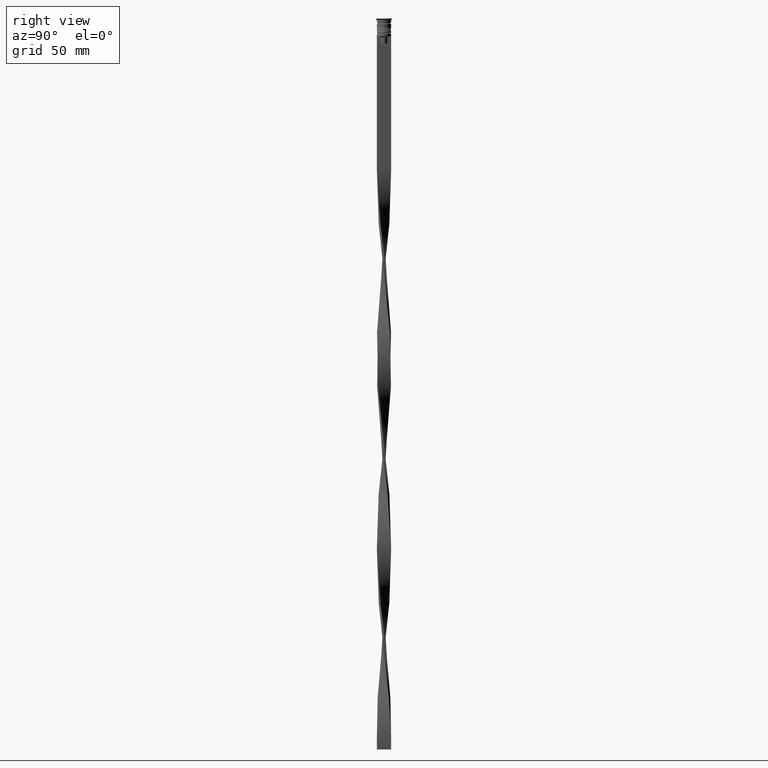
[diagram: clean part render]
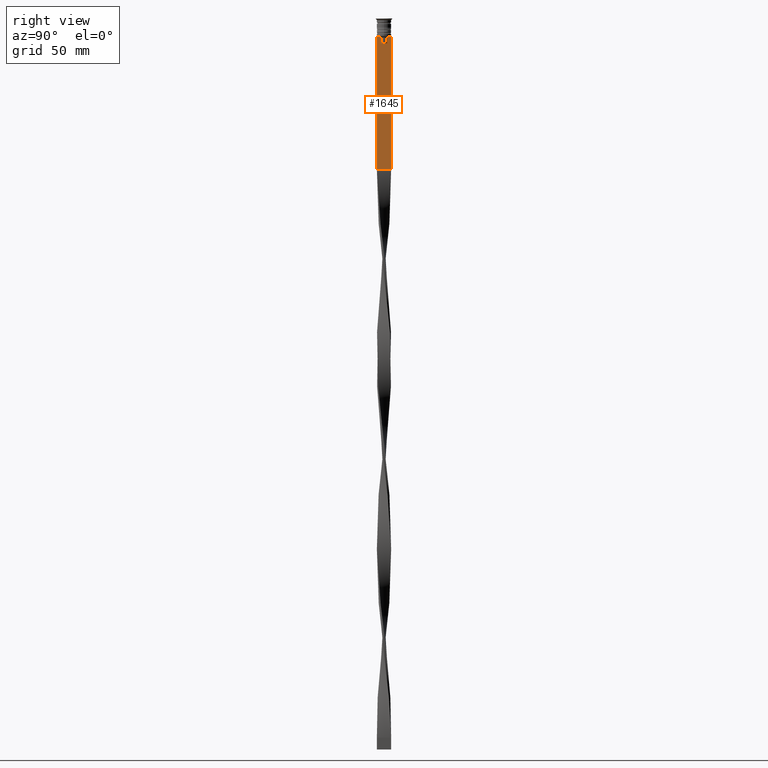
[diagram: same view with one face highlighted and labeled with its STEP entity id]
A machine part, right view. The second image highlights one B-rep face of the part: STEP entity #1645.
In plain terms, the highlighted planar face has unit normal (-1, 0, 0).
Its self-contained STEP definition (entity closure, byte-faithful):
#23 = ORIENTED_EDGE ( 'NONE', *, *, #3742, .T. ) ;
#37 = B_SPLINE_CURVE_WITH_KNOTS ( 'NONE', 3,
 ( #3471, #97, #3786, #3491 ),
 .UNSPECIFIED., .F., .F.,
 ( 4, 4 ),
 ( 0.003278537493109848298, 0.004003794023484941178 ),
 .UNSPECIFIED. ) ;
#84 = DIRECTION ( 'NONE',  ( 0.000000000000000000, 0.000000000000000000, -1.000000000000000000 ) ) ;
#86 = DIRECTION ( 'NONE',  ( 0.000000000000000000, -1.000000000000000000, 0.000000000000000000 ) ) ;
#97 = CARTESIAN_POINT ( 'NONE',  ( 0.4999999999999998890, 1.659046061654642967, -7.667851756010362507 ) ) ;
#124 = CARTESIAN_POINT ( 'NONE',  ( 0.4999999999999998890, -3.000000000000000000, -7.500000000000000000 ) ) ;
#176 = CARTESIAN_POINT ( 'NONE',  ( 0.4999999999999998890, 1.307669683062199439, -8.000000000000000000 ) ) ;
#178 = LINE ( 'NONE', #2660, #1796 ) ;
#284 = VERTEX_POINT ( 'NONE', #2982 ) ;
#441 = PLANE ( 'NONE',  #2488 ) ;
#455 = DIRECTION ( 'NONE',  ( 0.000000000000000000, -1.000000000000000000, 0.000000000000000000 ) ) ;
#457 = VECTOR ( 'NONE', #86, 1000.000000000000000 ) ;
#594 = EDGE_CURVE ( 'NONE', #1530, #2622, #1378, .T. ) ;
#948 = ORIENTED_EDGE ( 'NONE', *, *, #1195, .T. ) ;
#1001 = ORIENTED_EDGE ( 'NONE', *, *, #3054, .T. ) ;
#1050 = CARTESIAN_POINT ( 'NONE',  ( 0.4999999999999998890, -3.000000000000000000, -7.500000000000000000 ) ) ;
#1098 = VECTOR ( 'NONE', #2464, 1000.000000000000000 ) ;
#1101 = VECTOR ( 'NONE', #2796, 1000.000000000000000 ) ;
#1116 = VERTEX_POINT ( 'NONE', #3928 ) ;
#1152 = VERTEX_POINT ( 'NONE', #1467 ) ;
#1181 = DIRECTION ( 'NONE',  ( 0.000000000000000000, -1.000000000000000000, 0.000000000000000000 ) ) ;
#1195 = EDGE_CURVE ( 'NONE', #3865, #3910, #1783, .T. ) ;
#1255 = CARTESIAN_POINT ( 'NONE',  ( 0.4999999999999998890, -2.856571371417139904, -7.500000000000000000 ) ) ;
#1309 = EDGE_CURVE ( 'NONE', #284, #2686, #3714, .T. ) ;
#1378 = LINE ( 'NONE', #2642, #3030 ) ;
#1410 = EDGE_LOOP ( 'NONE', ( #2447, #1001, #3703, #948, #1892, #1510, #1443, #2110, #3156, #23, #1976, #3790 ) ) ;
#1421 = VECTOR ( 'NONE', #84, 1000.000000000000000 ) ;
#1443 = ORIENTED_EDGE ( 'NONE', *, *, #594, .T. ) ;
#1467 = CARTESIAN_POINT ( 'NONE',  ( 0.4999999999999998890, 3.000000000000000000, -7.500000000000000000 ) ) ;
#1498 = EDGE_CURVE ( 'NONE', #2607, #1530, #1657, .T. ) ;
#1510 = ORIENTED_EDGE ( 'NONE', *, *, #1498, .T. ) ;
#1530 = VERTEX_POINT ( 'NONE', #1743 ) ;
#1573 = LINE ( 'NONE', #2207, #1101 ) ;
#1591 = VECTOR ( 'NONE', #1181, 1000.000000000000000 ) ;
#1645 = ADVANCED_FACE ( 'NONE', ( #2961 ), #441, .F. ) ;
#1657 = B_SPLINE_CURVE_WITH_KNOTS ( 'NONE', 3,
 ( #2351, #1702, #3176, #3519 ),
 .UNSPECIFIED., .F., .F.,
 ( 4, 4 ),
 ( 0.007225659348748082224, 0.007950554640278054835 ),
 .UNSPECIFIED. ) ;
#1659 = DIRECTION ( 'NONE',  ( 0.000000000000000000, 0.000000000000000000, 1.000000000000000000 ) ) ;
#1702 = CARTESIAN_POINT ( 'NONE',  ( 0.4999999999999998890, -1.484307477388859153, -7.835011508197190722 ) ) ;
#1724 = DIRECTION ( 'NONE',  ( 0.000000000000000000, 0.000000000000000000, -1.000000000000000000 ) ) ;
#1743 = CARTESIAN_POINT ( 'NONE',  ( 0.4999999999999998890, -1.833030277982335754, -7.500000000000000000 ) ) ;
#1783 = LINE ( 'NONE', #3602, #1098 ) ;
#1796 = VECTOR ( 'NONE', #3552, 1000.000000000000000 ) ;
#1892 = ORIENTED_EDGE ( 'NONE', *, *, #3582, .T. ) ;
#1902 = CARTESIAN_POINT ( 'NONE',  ( 0.4999999999999998890, 3.000000000000000000, -1.417237469701779329 ) ) ;
#1964 = VERTEX_POINT ( 'NONE', #176 ) ;
#1976 = ORIENTED_EDGE ( 'NONE', *, *, #3769, .F. ) ;
#2110 = ORIENTED_EDGE ( 'NONE', *, *, #2476, .T. ) ;
#2126 = VECTOR ( 'NONE', #2187, 1000.000000000000000 ) ;
#2166 = CARTESIAN_POINT ( 'NONE',  ( 0.4999999999999998890, 1.307669683062199439, 0.000000000000000000 ) ) ;
#2187 = DIRECTION ( 'NONE',  ( 0.000000000000000000, 0.000000000000000000, -1.000000000000000000 ) ) ;
#2207 = CARTESIAN_POINT ( 'NONE',  ( 0.4999999999999998890, -3.000000000000000000, -63.50000000000000000 ) ) ;
#2351 = CARTESIAN_POINT ( 'NONE',  ( 0.4999999999999998890, -1.307669683062199439, -8.000000000000000000 ) ) ;
#2435 = VERTEX_POINT ( 'NONE', #3889 ) ;
#2447 = ORIENTED_EDGE ( 'NONE', *, *, #1309, .T. ) ;
#2464 = DIRECTION ( 'NONE',  ( 0.000000000000000000, -1.000000000000000000, 0.000000000000000000 ) ) ;
#2476 = EDGE_CURVE ( 'NONE', #2622, #2733, #2690, .T. ) ;
#2488 = AXIS2_PLACEMENT_3D ( 'NONE', #3562, #2605, #1659 ) ;
#2605 = DIRECTION ( 'NONE',  ( -1.000000000000000000, 0.000000000000000000, 0.000000000000000000 ) ) ;
#2607 = VERTEX_POINT ( 'NONE', #3016 ) ;
#2622 = VERTEX_POINT ( 'NONE', #1255 ) ;
#2642 = CARTESIAN_POINT ( 'NONE',  ( 0.4999999999999998890, -3.000000000000000000, -7.500000000000000000 ) ) ;
#2660 = CARTESIAN_POINT ( 'NONE',  ( 0.4999999999999998890, -3.000000000000000000, -7.500000000000000000 ) ) ;
#2686 = VERTEX_POINT ( 'NONE', #3720 ) ;
#2690 = LINE ( 'NONE', #3911, #1591 ) ;
#2733 = VERTEX_POINT ( 'NONE', #1050 ) ;
#2796 = DIRECTION ( 'NONE',  ( 0.000000000000000000, 1.000000000000000000, 0.000000000000000000 ) ) ;
#2961 = FACE_OUTER_BOUND ( 'NONE', #1410, .T. ) ;
#2982 = CARTESIAN_POINT ( 'NONE',  ( 0.4999999999999998890, 2.856571371417139904, -7.500000000000000000 ) ) ;
#3009 = CARTESIAN_POINT ( 'NONE',  ( 0.4999999999999998890, -1.307669683062199439, -10.49999999999999822 ) ) ;
#3014 = VECTOR ( 'NONE', #3037, 1000.000000000000000 ) ;
#3016 = CARTESIAN_POINT ( 'NONE',  ( 0.4999999999999998890, -1.307669683062199439, -8.000000000000000000 ) ) ;
#3030 = VECTOR ( 'NONE', #455, 1000.000000000000000 ) ;
#3037 = DIRECTION ( 'NONE',  ( -0.000000000000000000, -0.000000000000000000, 1.000000000000000000 ) ) ;
#3052 = LINE ( 'NONE', #2166, #1421 ) ;
#3054 = EDGE_CURVE ( 'NONE', #2686, #1964, #37, .T. ) ;
#3073 = LINE ( 'NONE', #1902, #2126 ) ;
#3152 = CARTESIAN_POINT ( 'NONE',  ( 0.4999999999999998890, 1.307669683062199439, -10.49999999999999822 ) ) ;
#3156 = ORIENTED_EDGE ( 'NONE', *, *, #3353, .T. ) ;
#3158 = EDGE_CURVE ( 'NONE', #1152, #284, #178, .T. ) ;
#3176 = CARTESIAN_POINT ( 'NONE',  ( 0.4999999999999998890, -1.659011726860414093, -7.667884880598472286 ) ) ;
#3340 = LINE ( 'NONE', #3618, #3014 ) ;
#3353 = EDGE_CURVE ( 'NONE', #2733, #2435, #3524, .T. ) ;
#3471 = CARTESIAN_POINT ( 'NONE',  ( 0.4999999999999998890, 1.833030277982335754, -7.500000000000000000 ) ) ;
#3491 = CARTESIAN_POINT ( 'NONE',  ( 0.4999999999999998890, 1.307669683062199439, -8.000000000000000000 ) ) ;
#3519 = CARTESIAN_POINT ( 'NONE',  ( 0.4999999999999998890, -1.833030277982335754, -7.500000000000000000 ) ) ;
#3524 = LINE ( 'NONE', #3544, #3771 ) ;
#3544 = CARTESIAN_POINT ( 'NONE',  ( 0.4999999999999998890, -3.000000000000000000, -1.417237469701779329 ) ) ;
#3552 = DIRECTION ( 'NONE',  ( 0.000000000000000000, -1.000000000000000000, 0.000000000000000000 ) ) ;
#3562 = CARTESIAN_POINT ( 'NONE',  ( 0.4999999999999998890, -3.000000000000000000, -1.417237469701779329 ) ) ;
#3582 = EDGE_CURVE ( 'NONE', #3910, #2607, #3340, .T. ) ;
#3602 = CARTESIAN_POINT ( 'NONE',  ( 0.4999999999999998890, 1.399999999999997691, -10.49999999999999822 ) ) ;
#3618 = CARTESIAN_POINT ( 'NONE',  ( 0.4999999999999998890, -1.307669683062199439, 0.000000000000000000 ) ) ;
#3670 = EDGE_CURVE ( 'NONE', #1964, #3865, #3052, .T. ) ;
#3703 = ORIENTED_EDGE ( 'NONE', *, *, #3670, .T. ) ;
#3714 = LINE ( 'NONE', #124, #457 ) ;
#3720 = CARTESIAN_POINT ( 'NONE',  ( 0.4999999999999998890, 1.833030277982335754, -7.500000000000000000 ) ) ;
#3742 = EDGE_CURVE ( 'NONE', #2435, #1116, #1573, .T. ) ;
#3769 = EDGE_CURVE ( 'NONE', #1152, #1116, #3073, .T. ) ;
#3771 = VECTOR ( 'NONE', #1724, 1000.000000000000000 ) ;
#3786 = CARTESIAN_POINT ( 'NONE',  ( 0.4999999999999998890, 1.484355510416485835, -7.834966642958598015 ) ) ;
#3790 = ORIENTED_EDGE ( 'NONE', *, *, #3158, .T. ) ;
#3865 = VERTEX_POINT ( 'NONE', #3152 ) ;
#3889 = CARTESIAN_POINT ( 'NONE',  ( 0.4999999999999998890, -3.000000000000000000, -63.50000000000000000 ) ) ;
#3910 = VERTEX_POINT ( 'NONE', #3009 ) ;
#3911 = CARTESIAN_POINT ( 'NONE',  ( 0.4999999999999998890, -3.000000000000000000, -7.500000000000000000 ) ) ;
#3928 = CARTESIAN_POINT ( 'NONE',  ( 0.4999999999999998890, 3.000000000000000000, -63.50000000000000000 ) ) ;